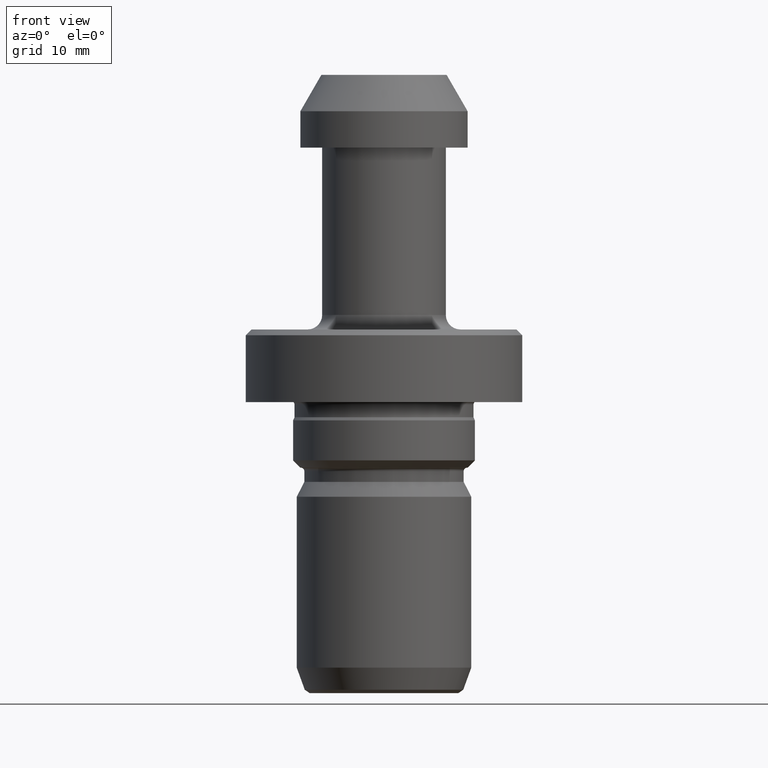
[diagram: clean part render]
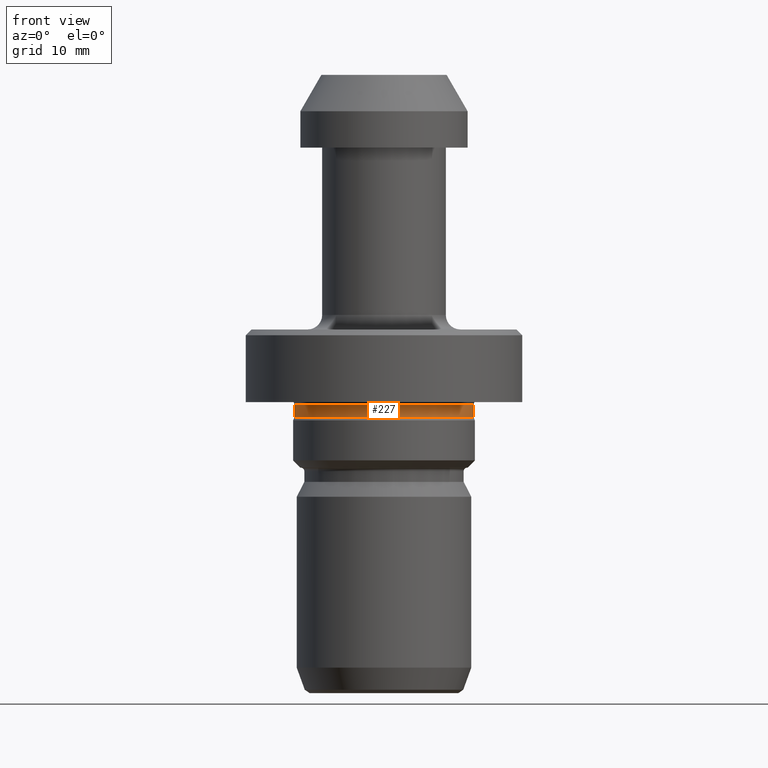
[diagram: same view with one face highlighted and labeled with its STEP entity id]
A machine part, front view. The second image highlights one B-rep face of the part: STEP entity #227.
In plain terms, the highlighted cylindrical surface (partial cylindrical patch) has radius 12.2995 mm, axis along (-0, -0, 1).
Its self-contained STEP definition (entity closure, byte-faithful):
#11 = LINE ( 'NONE', #367, #680 ) ;
#73 = DIRECTION ( 'NONE',  ( -0.0000000000000000000, -0.0000000000000000000, 1.000000000000000000 ) ) ;
#153 = ORIENTED_EDGE ( 'NONE', *, *, #363, .T. ) ;
#159 = VERTEX_POINT ( 'NONE', #1129 ) ;
#176 = AXIS2_PLACEMENT_3D ( 'NONE', #496, #1116, #582 ) ;
#209 = VERTEX_POINT ( 'NONE', #858 ) ;
#217 = EDGE_CURVE ( 'NONE', #1005, #209, #632, .T. ) ;
#227 = ADVANCED_FACE ( 'NONE', ( #458 ), #818, .T. ) ;
#266 = ORIENTED_EDGE ( 'NONE', *, *, #737, .T. ) ;
#288 = EDGE_LOOP ( 'NONE', ( #905, #266, #153, #347 ) ) ;
#301 = VERTEX_POINT ( 'NONE', #525 ) ;
#336 = CARTESIAN_POINT ( 'NONE',  ( -12.29948770699334800, 0.0000000000000000000, -47.06999999999999300 ) ) ;
#347 = ORIENTED_EDGE ( 'NONE', *, *, #884, .F. ) ;
#363 = EDGE_CURVE ( 'NONE', #301, #159, #11, .T. ) ;
#367 = CARTESIAN_POINT ( 'NONE',  ( 12.29948770699334800, 0.0000000000000000000, 0.0000000000000000000 ) ) ;
#371 = DIRECTION ( 'NONE',  ( -0.0000000000000000000, -0.0000000000000000000, 1.000000000000000000 ) ) ;
#372 = AXIS2_PLACEMENT_3D ( 'NONE', #900, #371, #995 ) ;
#376 = VECTOR ( 'NONE', #1134, 1000.000000000000000 ) ;
#421 = CARTESIAN_POINT ( 'NONE',  ( -12.29948770699334800, 1.506252825152162400E-015, 0.0000000000000000000 ) ) ;
#458 = FACE_OUTER_BOUND ( 'NONE', #288, .T. ) ;
#496 = CARTESIAN_POINT ( 'NONE',  ( 0.0000000000000000000, 0.0000000000000000000, -45.34883009897343000 ) ) ;
#525 = CARTESIAN_POINT ( 'NONE',  ( 12.29948770699334800, 1.518530662043177100E-015, -47.06999999999999300 ) ) ;
#582 = DIRECTION ( 'NONE',  ( 1.000000000000000000, 0.0000000000000000000, 0.0000000000000000000 ) ) ;
#596 = DIRECTION ( 'NONE',  ( 1.000000000000000000, 0.0000000000000000000, 0.0000000000000000000 ) ) ;
#632 = LINE ( 'NONE', #421, #376 ) ;
#680 = VECTOR ( 'NONE', #1074, 1000.000000000000000 ) ;
#737 = EDGE_CURVE ( 'NONE', #1005, #301, #1109, .T. ) ;
#809 = CIRCLE ( 'NONE', #176, 12.29948770699334800 ) ;
#818 = CYLINDRICAL_SURFACE ( 'NONE', #972, 12.29948770699334800 ) ;
#858 = CARTESIAN_POINT ( 'NONE',  ( -12.29948770699334800, 1.506252825152162400E-015, -45.34883009897343000 ) ) ;
#884 = EDGE_CURVE ( 'NONE', #209, #159, #809, .T. ) ;
#900 = CARTESIAN_POINT ( 'NONE',  ( 0.0000000000000000000, 0.0000000000000000000, -47.06999999999999300 ) ) ;
#905 = ORIENTED_EDGE ( 'NONE', *, *, #217, .F. ) ;
#972 = AXIS2_PLACEMENT_3D ( 'NONE', #1042, #73, #596 ) ;
#995 = DIRECTION ( 'NONE',  ( 1.000000000000000000, 0.0000000000000000000, 0.0000000000000000000 ) ) ;
#1005 = VERTEX_POINT ( 'NONE', #336 ) ;
#1042 = CARTESIAN_POINT ( 'NONE',  ( 0.0000000000000000000, 0.0000000000000000000, 0.0000000000000000000 ) ) ;
#1074 = DIRECTION ( 'NONE',  ( -0.0000000000000000000, -0.0000000000000000000, 1.000000000000000000 ) ) ;
#1109 = CIRCLE ( 'NONE', #372, 12.29948770699334800 ) ;
#1116 = DIRECTION ( 'NONE',  ( -0.0000000000000000000, -0.0000000000000000000, 1.000000000000000000 ) ) ;
#1129 = CARTESIAN_POINT ( 'NONE',  ( 12.29948770699334800, 0.0000000000000000000, -45.34883009897343000 ) ) ;
#1134 = DIRECTION ( 'NONE',  ( -0.0000000000000000000, -0.0000000000000000000, 1.000000000000000000 ) ) ;